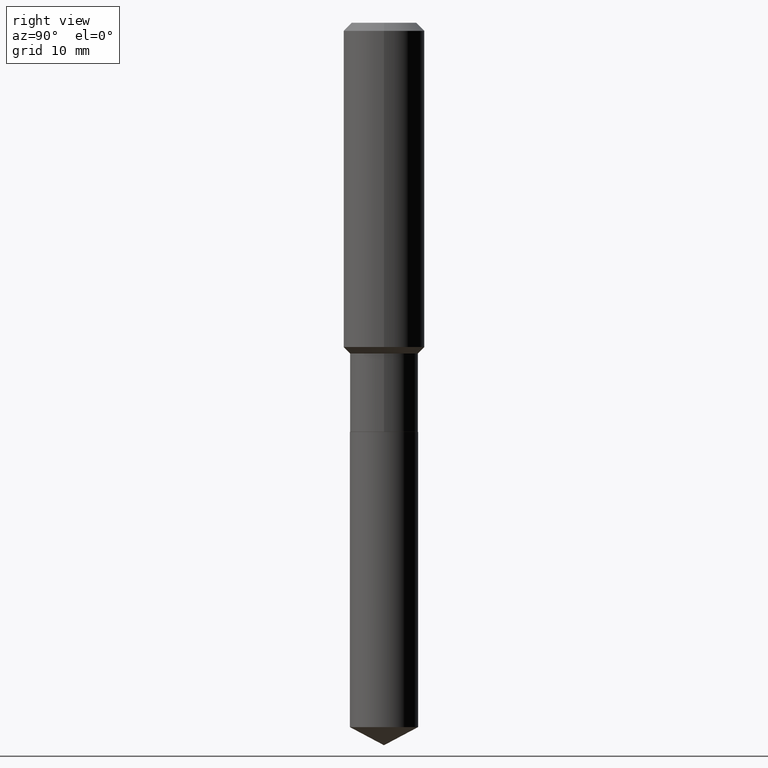
[diagram: clean part render]
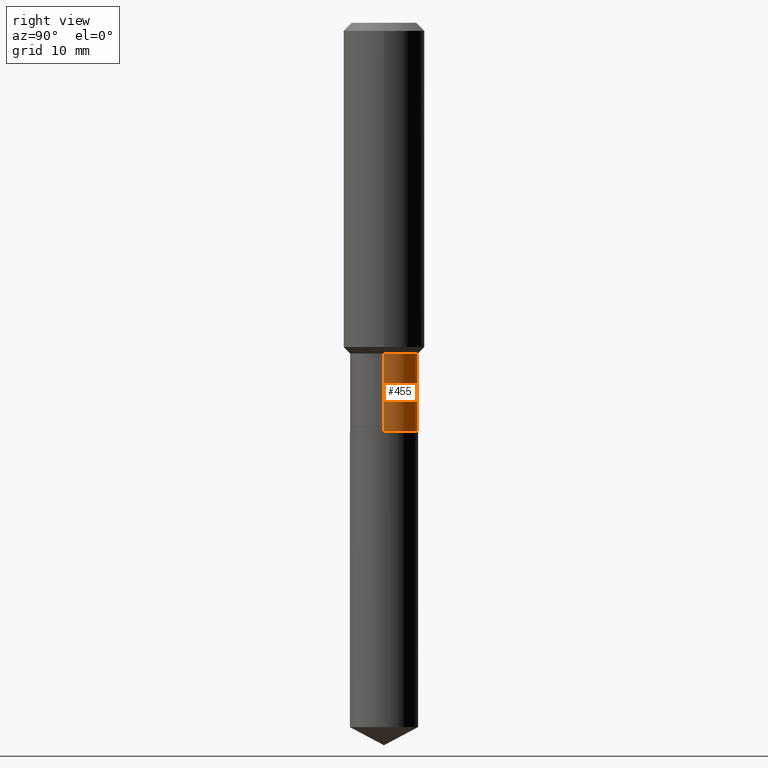
[diagram: same view with one face highlighted and labeled with its STEP entity id]
A machine part, right view. The second image highlights one B-rep face of the part: STEP entity #455.
In plain terms, the highlighted cylindrical surface (edge-blend (fillet) strip) has radius 4.1999 mm, axis along (-0, 0, 1).
Its self-contained STEP definition (entity closure, byte-faithful):
#1 = CIRCLE ( 'NONE', #21, 0.1653499999999999415 ) ;
#5 = DIRECTION ( 'NONE',  ( -2.445468806185136877E-29, 3.491481338843145188E-15, 1.000000000000000000 ) ) ;
#6 = EDGE_CURVE ( 'NONE', #107, #25, #1, .T. ) ;
#8 = CARTESIAN_POINT ( 'NONE',  ( 0.000000000000000000, 0.000000000000000000, 0.000000000000000000 ) ) ;
#21 = AXIS2_PLACEMENT_3D ( 'NONE', #205, #87, #286 ) ;
#25 = VERTEX_POINT ( 'NONE', #264 ) ;
#30 = EDGE_CURVE ( 'NONE', #107, #209, #67, .T. ) ;
#47 = EDGE_CURVE ( 'NONE', #209, #296, #169, .T. ) ;
#60 = ORIENTED_EDGE ( 'NONE', *, *, #466, .T. ) ;
#64 = AXIS2_PLACEMENT_3D ( 'NONE', #8, #218, #100 ) ;
#67 = LINE ( 'NONE', #204, #362 ) ;
#87 = DIRECTION ( 'NONE',  ( -2.445468806185136597E-29, 3.491481338843145583E-15, 1.000000000000000000 ) ) ;
#100 = DIRECTION ( 'NONE',  ( 1.000000000000000000, -6.982962677686267499E-15, 4.876176775795935793E-29 ) ) ;
#107 = VERTEX_POINT ( 'NONE', #473 ) ;
#117 = EDGE_LOOP ( 'NONE', ( #192, #60, #291, #295 ) ) ;
#151 = CARTESIAN_POINT ( 'NONE',  ( -0.1653499999999999415, 1.174882413579325241E-15, -8.133459171736485198E-30 ) ) ;
#169 = CIRCLE ( 'NONE', #235, 0.1653499999999999415 ) ;
#187 = LINE ( 'NONE', #151, #338 ) ;
#192 = ORIENTED_EDGE ( 'NONE', *, *, #6, .T. ) ;
#204 = CARTESIAN_POINT ( 'NONE',  ( 0.1653499999999999415, -1.154632878755423876E-15, 8.062758298778576767E-30 ) ) ;
#205 = CARTESIAN_POINT ( 'NONE',  ( 4.851076470829455040E-29, -6.926051531863146205E-15, -1.983699999999999575 ) ) ;
#209 = VERTEX_POINT ( 'NONE', #438 ) ;
#218 = DIRECTION ( 'NONE',  ( -2.445468806185136597E-29, 3.491481338843145583E-15, 1.000000000000000000 ) ) ;
#235 = AXIS2_PLACEMENT_3D ( 'NONE', #299, #343, #434 ) ;
#264 = CARTESIAN_POINT ( 'NONE',  ( -0.1653499999999999415, -5.088136812037508270E-15, -1.983699999999999575 ) ) ;
#286 = DIRECTION ( 'NONE',  ( 1.000000000000000000, -6.982962677686267499E-15, 0.000000000000000000 ) ) ;
#291 = ORIENTED_EDGE ( 'NONE', *, *, #47, .F. ) ;
#295 = ORIENTED_EDGE ( 'NONE', *, *, #30, .F. ) ;
#296 = VERTEX_POINT ( 'NONE', #465 ) ;
#299 = CARTESIAN_POINT ( 'NONE',  ( 3.922287418240340052E-29, -5.599986919370520029E-15, -1.603899999999999881 ) ) ;
#338 = VECTOR ( 'NONE', #5, 39.37007874015748143 ) ;
#343 = DIRECTION ( 'NONE',  ( -2.445468806185136597E-29, 3.491481338843145583E-15, 1.000000000000000000 ) ) ;
#362 = VECTOR ( 'NONE', #459, 39.37007874015748143 ) ;
#365 = CYLINDRICAL_SURFACE ( 'NONE', #64, 0.1653499999999999415 ) ;
#434 = DIRECTION ( 'NONE',  ( 1.000000000000000000, -6.982962677686267499E-15, 0.000000000000000000 ) ) ;
#438 = CARTESIAN_POINT ( 'NONE',  ( 0.1653499999999999415, -6.754619798125944299E-15, -1.603899999999999881 ) ) ;
#449 = FACE_OUTER_BOUND ( 'NONE', #117, .T. ) ;
#455 = ADVANCED_FACE ( 'NONE', ( #449 ), #365, .T. ) ;
#459 = DIRECTION ( 'NONE',  ( -2.445468806185136877E-29, 3.491481338843145188E-15, 1.000000000000000000 ) ) ;
#465 = CARTESIAN_POINT ( 'NONE',  ( -0.1653499999999999415, -5.088136812037508270E-15, -1.603899999999999881 ) ) ;
#466 = EDGE_CURVE ( 'NONE', #25, #296, #187, .T. ) ;
#473 = CARTESIAN_POINT ( 'NONE',  ( 0.1653499999999999415, -8.080684410618569686E-15, -1.983699999999999575 ) ) ;